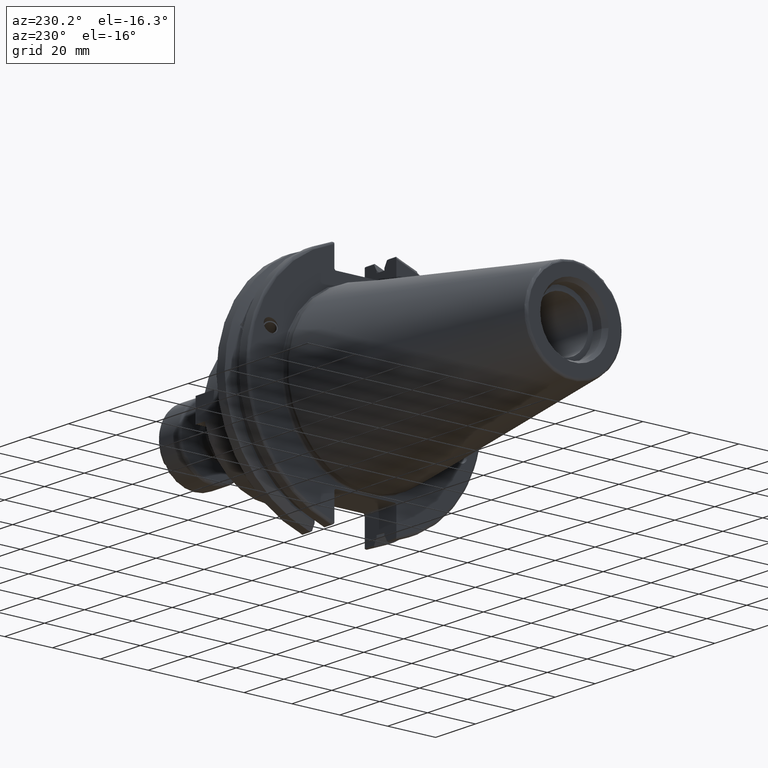
[diagram: clean part render]
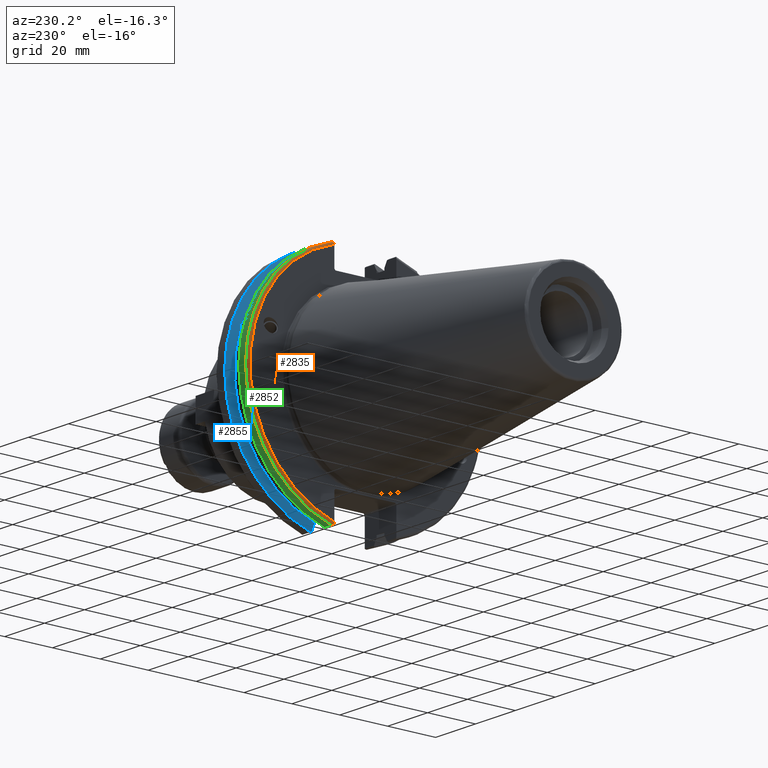
[diagram: same view with three faces highlighted in distinct colors, each labeled with its STEP entity id]
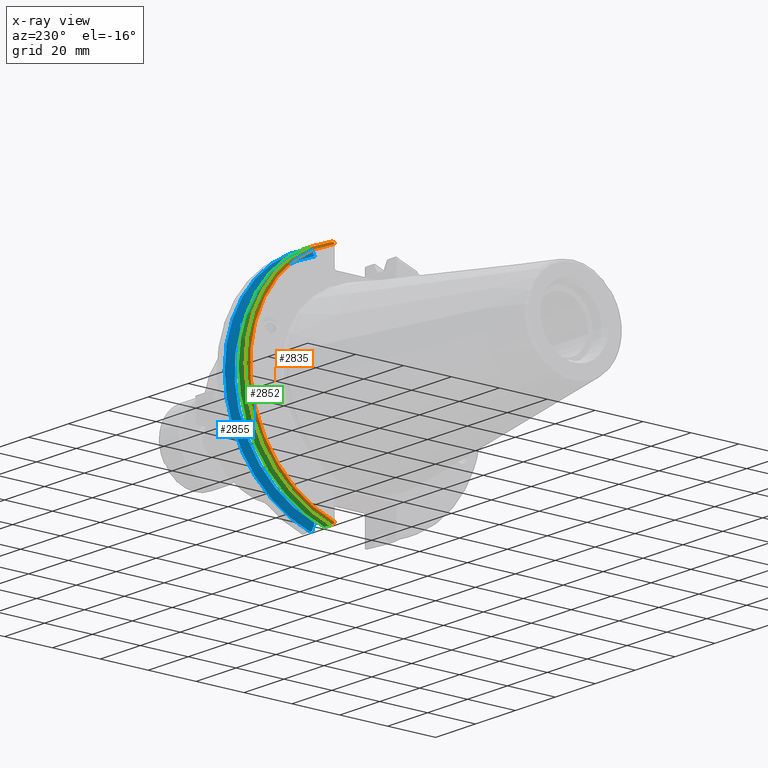
[diagram: x-ray of the same camera — body ghosted, the three highlighted faces saturated]
A machine part, auxiliary view with three faces highlighted in distinct colors.
The next image is the same camera in x-ray (body ghosted, the three faces saturated) — at least one of them is partly hidden behind the body in this view.
Their STEP definitions:

[orange] entity #2835 — the highlighted toroidal blend (fillet) surface has major radius 48.2125 mm and minor (blend) radius 1 mm.
#446=TOROIDAL_SURFACE('',#3201,48.2125,1.);
#515=B_SPLINE_CURVE_WITH_KNOTS('',3,(#5074,#5075,#5076,#5077,#5078,#5079),
 .UNSPECIFIED.,.F.,.F.,(4,2,4),(0.0976892167532858,0.112000071948292,0.150881870548587),
 .UNSPECIFIED.);
#516=B_SPLINE_CURVE_WITH_KNOTS('',3,(#5100,#5101,#5102,#5103,#5104,#5105),
 .UNSPECIFIED.,.F.,.F.,(4,2,4),(0.452859340315923,0.491741138916218,0.506051994111224),
 .UNSPECIFIED.);
#520=B_SPLINE_CURVE_WITH_KNOTS('',3,(#5152,#5153,#5154,#5155,#5156,#5157,
#5158,#5159),.UNSPECIFIED.,.F.,.F.,(4,2,2,4),(-0.104075769062722,-0.0730268503455479,
-0.0343639873656265,0.),.UNSPECIFIED.);
#521=B_SPLINE_CURVE_WITH_KNOTS('',3,(#5162,#5163,#5164,#5165,#5166,#5167,
#5168,#5169),.UNSPECIFIED.,.F.,.F.,(4,2,2,4),(0.,0.0343639873656266,0.0730268503455482,
0.104075769062722),.UNSPECIFIED.);
#664=CIRCLE('',#3181,48.2125);
#672=CIRCLE('',#3202,49.2125);
#809=FACE_OUTER_BOUND('',#971,.T.);
#971=EDGE_LOOP('',(#2340,#2341,#2342,#2343,#2344,#2345));
#1503=VERTEX_POINT('',#4938);
#1504=VERTEX_POINT('',#4940);
#1535=VERTEX_POINT('',#5073);
#1541=VERTEX_POINT('',#5098);
#1548=VERTEX_POINT('',#5151);
#1549=VERTEX_POINT('',#5160);
#1780=EDGE_CURVE('',#1504,#1503,#664,.T.);
#1820=EDGE_CURVE('',#1535,#1504,#515,.T.);
#1830=EDGE_CURVE('',#1503,#1541,#516,.T.);
#1842=EDGE_CURVE('',#1541,#1548,#520,.T.);
#1843=EDGE_CURVE('',#1548,#1549,#672,.T.);
#1844=EDGE_CURVE('',#1549,#1535,#521,.T.);
#2340=ORIENTED_EDGE('',*,*,#1842,.T.);
#2341=ORIENTED_EDGE('',*,*,#1843,.T.);
#2342=ORIENTED_EDGE('',*,*,#1844,.T.);
#2343=ORIENTED_EDGE('',*,*,#1820,.T.);
#2344=ORIENTED_EDGE('',*,*,#1780,.T.);
#2345=ORIENTED_EDGE('',*,*,#1830,.T.);
#2835=ADVANCED_FACE('',(#809),#446,.T.);
#3181=AXIS2_PLACEMENT_3D('',#4941,#3682,#3683);
#3201=AXIS2_PLACEMENT_3D('',#5150,#3757,#3758);
#3202=AXIS2_PLACEMENT_3D('',#5161,#3759,#3760);
#3682=DIRECTION('center_axis',(1.,0.,0.));
#3683=DIRECTION('ref_axis',(0.,1.,-6.12323399573677E-17));
#3757=DIRECTION('center_axis',(1.,0.,0.));
#3758=DIRECTION('ref_axis',(0.,0.,-1.));
#3759=DIRECTION('center_axis',(-1.,0.,0.));
#3760=DIRECTION('ref_axis',(0.,1.,-6.12323399573677E-17));
#4938=CARTESIAN_POINT('',(3.175,12.95,46.4407434937254));
#4940=CARTESIAN_POINT('',(3.175,12.95,-46.4407434937254));
#4941=CARTESIAN_POINT('Origin',(3.175,0.,0.));
#5073=CARTESIAN_POINT('',(3.31949794294344,12.95,-46.9780755322918));
#5074=CARTESIAN_POINT('Ctrl Pts',(3.31949794294344,12.95,-46.9780755322918));
#5075=CARTESIAN_POINT('Ctrl Pts',(3.29341556483839,12.95,-46.9333752207329));
#5076=CARTESIAN_POINT('Ctrl Pts',(3.27115672912336,12.95,-46.887363294568));
#5077=CARTESIAN_POINT('Ctrl Pts',(3.20453530071253,12.95,-46.7230464903732));
#5078=CARTESIAN_POINT('Ctrl Pts',(3.175,12.95,-46.5703494890597));
#5079=CARTESIAN_POINT('Ctrl Pts',(3.175,12.95,-46.4407434937254));
#5098=CARTESIAN_POINT('',(3.31949794294344,12.95,46.9780755322918));
#5100=CARTESIAN_POINT('Ctrl Pts',(3.175,12.95,46.4407434937254));
#5101=CARTESIAN_POINT('Ctrl Pts',(3.175,12.95,46.5703494890597));
#5102=CARTESIAN_POINT('Ctrl Pts',(3.20453530071253,12.95,46.7230464903732));
#5103=CARTESIAN_POINT('Ctrl Pts',(3.27115672912336,12.95,46.887363294568));
#5104=CARTESIAN_POINT('Ctrl Pts',(3.29341556483839,12.95,46.9333752207329));
#5105=CARTESIAN_POINT('Ctrl Pts',(3.31949794294344,12.95,46.9780755322918));
#5150=CARTESIAN_POINT('Origin',(4.175,0.,0.));
#5151=CARTESIAN_POINT('',(4.175,13.4317035994433,47.3440544806494));
#5152=CARTESIAN_POINT('Ctrl Pts',(3.31949794294344,12.95,46.9780755322918));
#5153=CARTESIAN_POINT('Ctrl Pts',(3.36785032278754,13.0300321736484,47.0388807469102));
#5154=CARTESIAN_POINT('Ctrl Pts',(3.43235971798504,13.1083611826073,47.0983919657547));
#5155=CARTESIAN_POINT('Ctrl Pts',(3.58507512107923,13.2478194810695,47.2043467509586));
#5156=CARTESIAN_POINT('Ctrl Pts',(3.70638116490965,13.3242014686233,47.2623787015413));
#5157=CARTESIAN_POINT('Ctrl Pts',(3.92661103245834,13.4067722493645,47.3251126473446));
#5158=CARTESIAN_POINT('Ctrl Pts',(4.06045337544791,13.4317035994433,47.3440544806494));
#5159=CARTESIAN_POINT('Ctrl Pts',(4.175,13.4317035994433,47.3440544806494));
#5160=CARTESIAN_POINT('',(4.175,13.4317035994433,-47.3440544806494));
#5161=CARTESIAN_POINT('Origin',(4.175,0.,0.));
#5162=CARTESIAN_POINT('Ctrl Pts',(4.175,13.4317035994433,-47.3440544806494));
#5163=CARTESIAN_POINT('Ctrl Pts',(4.06045337544791,13.4317035994433,-47.3440544806494));
#5164=CARTESIAN_POINT('Ctrl Pts',(3.92661103245834,13.4067722493645,-47.3251126473446));
#5165=CARTESIAN_POINT('Ctrl Pts',(3.70638116490964,13.3242014686232,-47.2623787015413));
#5166=CARTESIAN_POINT('Ctrl Pts',(3.58507512107923,13.2478194810695,-47.2043467509586));
#5167=CARTESIAN_POINT('Ctrl Pts',(3.43235971798504,13.1083611826073,-47.0983919657547));
#5168=CARTESIAN_POINT('Ctrl Pts',(3.36785032278754,13.0300321736484,-47.0388807469102));
#5169=CARTESIAN_POINT('Ctrl Pts',(3.31949794294344,12.95,-46.9780755322918));

[blue] entity #2855 — the highlighted conical surface has half-angle 60 deg.
#462=(
BOUNDED_CURVE()
B_SPLINE_CURVE(2,(#5082,#5083,#5084),.UNSPECIFIED.,.F.,.F.)
B_SPLINE_CURVE_WITH_KNOTS((3,3),(0.0558332664532001,0.331657177124504),
 .UNSPECIFIED.)
CURVE()
GEOMETRIC_REPRESENTATION_ITEM()
RATIONAL_B_SPLINE_CURVE((1.00012873636632,1.00038235574022,1.))
REPRESENTATION_ITEM('')
);
#463=(
BOUNDED_CURVE()
B_SPLINE_CURVE(2,(#5090,#5091,#5092),.UNSPECIFIED.,.F.,.F.)
B_SPLINE_CURVE_WITH_KNOTS((3,3),(0.,0.275823910671402),.UNSPECIFIED.)
CURVE()
GEOMETRIC_REPRESENTATION_ITEM()
RATIONAL_B_SPLINE_CURVE((1.,1.00038235574129,1.00012873636668))
REPRESENTATION_ITEM('')
);
#467=(
BOUNDED_CURVE()
B_SPLINE_CURVE(2,(#5207,#5208,#5209),.UNSPECIFIED.,.F.,.F.)
B_SPLINE_CURVE_WITH_KNOTS((3,3),(0.325260944932521,0.390084992222202),
 .UNSPECIFIED.)
CURVE()
GEOMETRIC_REPRESENTATION_ITEM()
RATIONAL_B_SPLINE_CURVE((1.00019140645994,1.00011477674864,1.))
REPRESENTATION_ITEM('')
);
#468=(
BOUNDED_CURVE()
B_SPLINE_CURVE(2,(#5214,#5215,#5216),.UNSPECIFIED.,.F.,.F.)
B_SPLINE_CURVE_WITH_KNOTS((3,3),(0.,0.0648240472897064),.UNSPECIFIED.)
CURVE()
GEOMETRIC_REPRESENTATION_ITEM()
RATIONAL_B_SPLINE_CURVE((1.,1.00011477674844,1.00019140645961))
REPRESENTATION_ITEM('')
);
#501=B_SPLINE_CURVE_WITH_KNOTS('',3,(#4797,#4798,#4799,#4800,#4801,#4802,
#4803,#4804),.UNSPECIFIED.,.F.,.F.,(4,2,2,4),(0.426712868358721,0.441644498666904,
0.480313313223128,0.518982127779351),.UNSPECIFIED.);
#505=B_SPLINE_CURVE_WITH_KNOTS('',3,(#4859,#4860,#4861,#4862,#4863,#4864,
#4865,#4866),.UNSPECIFIED.,.F.,.F.,(4,2,2,4),(0.518982127779351,0.557650942335575,
0.596319756891798,0.611251387199983),.UNSPECIFIED.);
#573=CONICAL_SURFACE('',#3231,47.8172386482472,1.0471975511966);
#655=CIRCLE('',#3165,46.4219772964944);
#679=CIRCLE('',#3224,49.2125);
#682=CIRCLE('',#3232,46.4219772964944);
#829=FACE_OUTER_BOUND('',#992,.T.);
#992=EDGE_LOOP('',(#2429,#2430,#2431,#2432,#2433,#2434,#2435,#2436,#2437));
#1471=VERTEX_POINT('',#4794);
#1472=VERTEX_POINT('',#4796);
#1479=VERTEX_POINT('',#4857);
#1488=VERTEX_POINT('',#4899);
#1536=VERTEX_POINT('',#5081);
#1537=VERTEX_POINT('',#5087);
#1538=VERTEX_POINT('',#5089);
#1555=VERTEX_POINT('',#5206);
#1556=VERTEX_POINT('',#5212);
#1741=EDGE_CURVE('',#1472,#1471,#501,.T.);
#1749=EDGE_CURVE('',#1471,#1479,#505,.T.);
#1761=EDGE_CURVE('',#1488,#1472,#655,.T.);
#1822=EDGE_CURVE('',#1536,#1488,#462,.T.);
#1825=EDGE_CURVE('',#1538,#1537,#463,.T.);
#1861=EDGE_CURVE('',#1536,#1555,#467,.T.);
#1864=EDGE_CURVE('',#1556,#1537,#468,.T.);
#1865=EDGE_CURVE('',#1555,#1556,#679,.T.);
#1871=EDGE_CURVE('',#1479,#1538,#682,.T.);
#2429=ORIENTED_EDGE('',*,*,#1741,.T.);
#2430=ORIENTED_EDGE('',*,*,#1749,.T.);
#2431=ORIENTED_EDGE('',*,*,#1871,.T.);
#2432=ORIENTED_EDGE('',*,*,#1825,.T.);
#2433=ORIENTED_EDGE('',*,*,#1864,.F.);
#2434=ORIENTED_EDGE('',*,*,#1865,.F.);
#2435=ORIENTED_EDGE('',*,*,#1861,.F.);
#2436=ORIENTED_EDGE('',*,*,#1822,.T.);
#2437=ORIENTED_EDGE('',*,*,#1761,.T.);
#2855=ADVANCED_FACE('',(#829),#573,.T.);
#3165=AXIS2_PLACEMENT_3D('',#4900,#3641,#3642);
#3224=AXIS2_PLACEMENT_3D('',#5218,#3814,#3815);
#3231=AXIS2_PLACEMENT_3D('',#5231,#3831,#3832);
#3232=AXIS2_PLACEMENT_3D('',#5232,#3833,#3834);
#3641=DIRECTION('center_axis',(1.,0.,0.));
#3642=DIRECTION('ref_axis',(0.,0.,-1.));
#3814=DIRECTION('center_axis',(1.,0.,0.));
#3815=DIRECTION('ref_axis',(0.,0.,-1.));
#3831=DIRECTION('center_axis',(1.,0.,0.));
#3832=DIRECTION('ref_axis',(0.,1.,0.));
#3833=DIRECTION('center_axis',(1.,0.,0.));
#3834=DIRECTION('ref_axis',(0.,0.,-1.));
#4794=CARTESIAN_POINT('',(13.2341,43.923494649906,15.9868446375166));
#4796=CARTESIAN_POINT('',(13.0491,43.9096390749305,15.0646464421033));
#4797=CARTESIAN_POINT('Ctrl Pts',(13.0491,43.9096390749305,15.0646464421033));
#4798=CARTESIAN_POINT('Ctrl Pts',(13.0660815609661,43.9250360001461,15.1104047527575));
#4799=CARTESIAN_POINT('Ctrl Pts',(13.0821132459668,43.9385582852181,15.1564111356409));
#4800=CARTESIAN_POINT('Ctrl Pts',(13.1358132615496,43.9797830409458,15.3217566390708));
#4801=CARTESIAN_POINT('Ctrl Pts',(13.1719838933644,43.9989016655819,15.4570249042867));
#4802=CARTESIAN_POINT('Ctrl Pts',(13.2212913174802,43.9931221605125,15.7289849146254));
#4803=CARTESIAN_POINT('Ctrl Pts',(13.2341,43.9675796948952,15.8657219718732));
#4804=CARTESIAN_POINT('Ctrl Pts',(13.2341,43.923494649906,15.9868446375166));
#4857=CARTESIAN_POINT('',(13.0491,43.3201030900029,16.6843832486479));
#4859=CARTESIAN_POINT('Ctrl Pts',(13.2341,43.923494649906,15.9868446375166));
#4860=CARTESIAN_POINT('Ctrl Pts',(13.2341,43.8794096049168,16.10796730316));
#4861=CARTESIAN_POINT('Ctrl Pts',(13.2212913174802,43.8110833825827,16.2291323464527));
#4862=CARTESIAN_POINT('Ctrl Pts',(13.1719838933644,43.6406982153491,16.4411807953719));
#4863=CARTESIAN_POINT('Ctrl Pts',(13.1358132615496,43.539103734322,16.5325130832406));
#4864=CARTESIAN_POINT('Ctrl Pts',(13.0821132459668,43.4012416983557,16.6326763251437));
#4865=CARTESIAN_POINT('Ctrl Pts',(13.0660815609661,43.3613106941341,16.6592273018006));
#4866=CARTESIAN_POINT('Ctrl Pts',(13.0491,43.3201030900029,16.6843832486479));
#4899=CARTESIAN_POINT('',(13.0491,12.95,-44.5791147973605));
#4900=CARTESIAN_POINT('Origin',(13.0491,0.,0.));
#5081=CARTESIAN_POINT('',(14.3818103943757,12.95,-46.9780755322918));
#5082=CARTESIAN_POINT('Ctrl Pts',(14.3818103943757,12.95,-46.9780755322918));
#5083=CARTESIAN_POINT('Ctrl Pts',(13.6979955094851,12.95,-45.7494966802933));
#5084=CARTESIAN_POINT('Ctrl Pts',(13.0491,12.95,-44.5791147973604));
#5087=CARTESIAN_POINT('',(14.3818103943757,12.95,46.9780755322918));
#5089=CARTESIAN_POINT('',(13.0491,12.95,44.5791147973604));
#5090=CARTESIAN_POINT('Ctrl Pts',(13.0491,12.95,44.5791147973604));
#5091=CARTESIAN_POINT('Ctrl Pts',(13.6979955094846,12.95,45.7494966802924));
#5092=CARTESIAN_POINT('Ctrl Pts',(14.3818103943757,12.95,46.9780755322918));
#5206=CARTESIAN_POINT('',(14.6602090340487,13.4317035994433,-47.3440544806494));
#5207=CARTESIAN_POINT('Ctrl Pts',(14.3818103943757,12.95,-46.9780755322918));
#5208=CARTESIAN_POINT('Ctrl Pts',(14.5199310333617,13.1896660169965,-47.1601640966264));
#5209=CARTESIAN_POINT('Ctrl Pts',(14.6602090340487,13.4317035994433,-47.3440544806494));
#5212=CARTESIAN_POINT('',(14.6602090340487,13.4317035994433,47.3440544806494));
#5214=CARTESIAN_POINT('Ctrl Pts',(14.6602090340487,13.4317035994433,47.3440544806494));
#5215=CARTESIAN_POINT('Ctrl Pts',(14.5199310333618,13.1896660169966,47.1601640966264));
#5216=CARTESIAN_POINT('Ctrl Pts',(14.3818103943757,12.95,46.9780755322918));
#5218=CARTESIAN_POINT('Origin',(14.6602090340487,0.,0.));
#5231=CARTESIAN_POINT('Origin',(13.8546545170244,0.,0.));
#5232=CARTESIAN_POINT('Origin',(13.0491,0.,0.));

[green] entity #2852 — the highlighted cylindrical surface (partial cylindrical patch) has radius 49.2125 mm, axis along (1, 0, 0).
#547=CYLINDRICAL_SURFACE('',#3226,49.2125);
#651=CIRCLE('',#3158,49.2125);
#672=CIRCLE('',#3202,49.2125);
#826=FACE_OUTER_BOUND('',#989,.T.);
#989=EDGE_LOOP('',(#2418,#2419,#2420,#2421));
#1153=LINE('',#5171,#1319);
#1164=LINE('',#5220,#1330);
#1319=VECTOR('',#3763,10.);
#1330=VECTOR('',#3818,10.);
#1482=VERTEX_POINT('',#4875);
#1483=VERTEX_POINT('',#4879);
#1548=VERTEX_POINT('',#5151);
#1549=VERTEX_POINT('',#5160);
#1753=EDGE_CURVE('',#1482,#1483,#651,.T.);
#1843=EDGE_CURVE('',#1548,#1549,#672,.T.);
#1845=EDGE_CURVE('',#1549,#1482,#1153,.T.);
#1866=EDGE_CURVE('',#1483,#1548,#1164,.T.);
#2418=ORIENTED_EDGE('',*,*,#1843,.F.);
#2419=ORIENTED_EDGE('',*,*,#1866,.F.);
#2420=ORIENTED_EDGE('',*,*,#1753,.F.);
#2421=ORIENTED_EDGE('',*,*,#1845,.F.);
#2852=ADVANCED_FACE('',(#826),#547,.T.);
#3158=AXIS2_PLACEMENT_3D('',#4880,#3625,#3626);
#3202=AXIS2_PLACEMENT_3D('',#5161,#3759,#3760);
#3226=AXIS2_PLACEMENT_3D('',#5221,#3819,#3820);
#3625=DIRECTION('center_axis',(1.,0.,0.));
#3626=DIRECTION('ref_axis',(0.,0.,-1.));
#3759=DIRECTION('center_axis',(-1.,0.,0.));
#3760=DIRECTION('ref_axis',(0.,1.,-6.12323399573677E-17));
#3763=DIRECTION('',(1.,0.,0.));
#3818=DIRECTION('',(-1.,0.,0.));
#3819=DIRECTION('center_axis',(1.,0.,0.));
#3820=DIRECTION('ref_axis',(0.,1.,0.));
#4875=CARTESIAN_POINT('',(7.60799096595127,13.4317035994433,-47.3440544806494));
#4879=CARTESIAN_POINT('',(7.60799096595127,13.4317035994433,47.3440544806494));
#4880=CARTESIAN_POINT('Origin',(7.60799096595127,0.,0.));
#5151=CARTESIAN_POINT('',(4.175,13.4317035994433,47.3440544806494));
#5160=CARTESIAN_POINT('',(4.175,13.4317035994433,-47.3440544806494));
#5161=CARTESIAN_POINT('Origin',(4.175,0.,0.));
#5171=CARTESIAN_POINT('',(5.39149548297563,13.4317035994433,-47.3440544806494));
#5220=CARTESIAN_POINT('',(5.39149548297563,13.4317035994433,47.3440544806494));
#5221=CARTESIAN_POINT('Origin',(5.39149548297563,0.,0.));